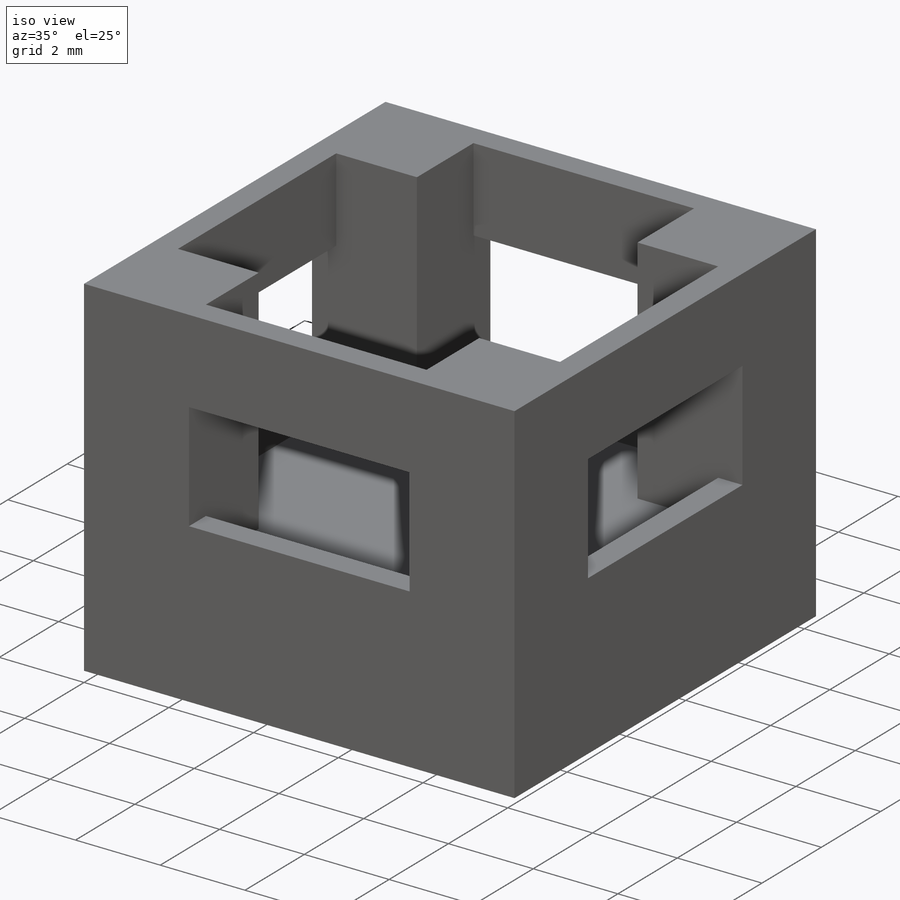
[diagram: iso view]
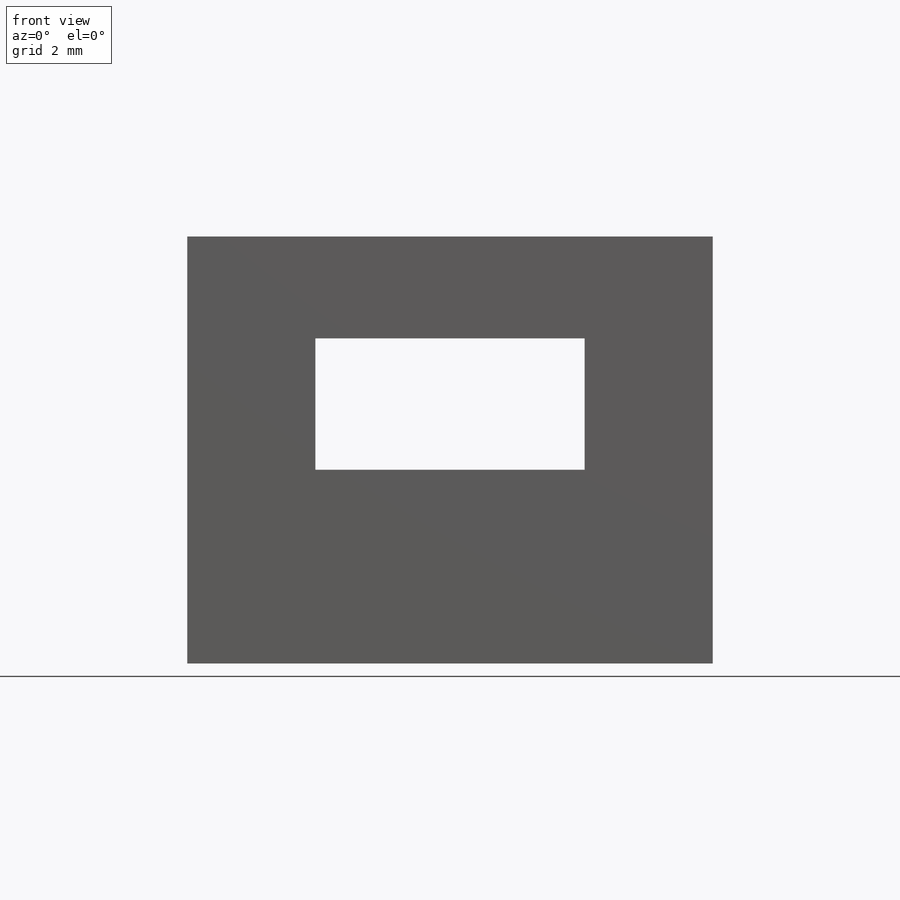
[diagram: front view]
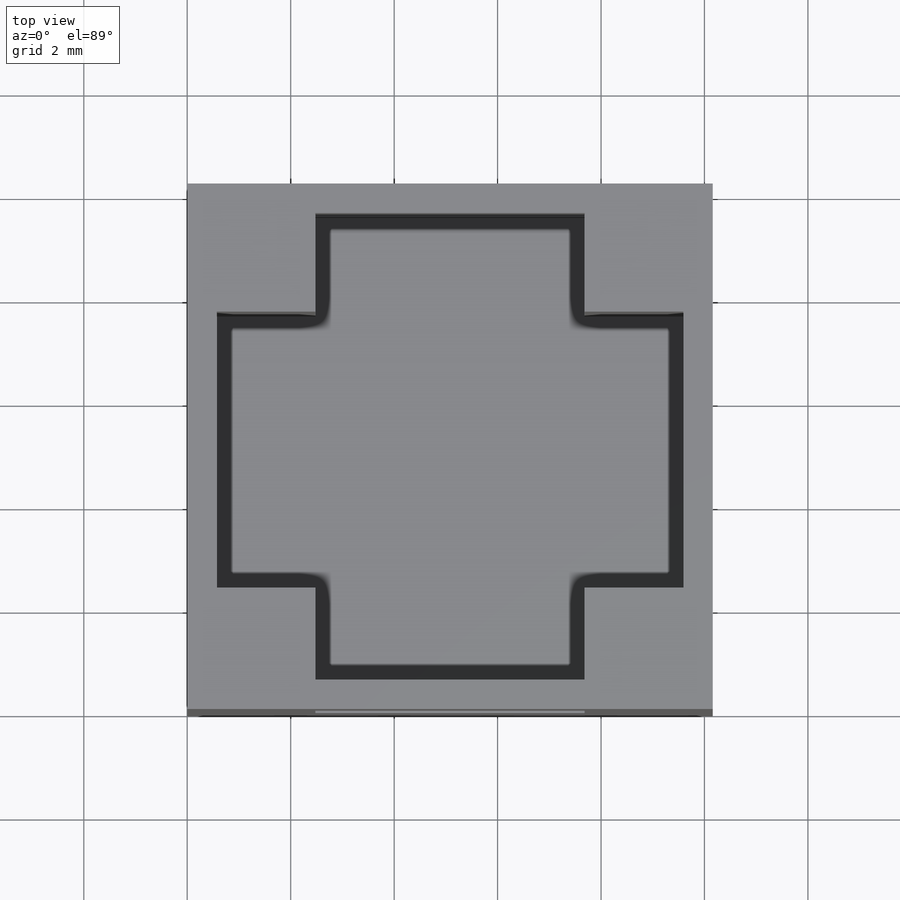
[diagram: top view]
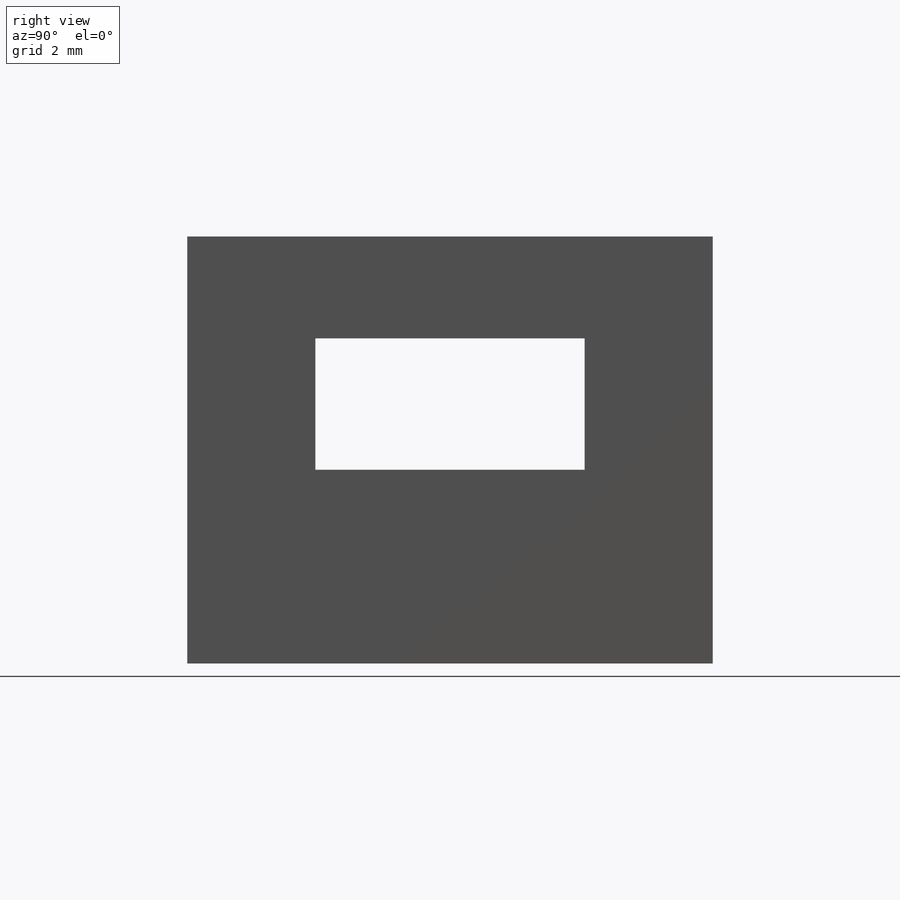
[diagram: right view]
SOLIDWORKS PART (.sldprt)
format: sldprt  version: not decoded by parser v0  size: 242,688 bytes
history: native  units: mm
features: sketch x7, cut_extrude x6, material x1, extrude x1 (+13 scaffold rows collapsed)
feature tree (28):
  scaffold x13  (default folders/planes/origin — collapsed)
  material  "Material <not specified>"
  sketch  "Sketch1"
  extrude  "Boss-Extrude1"  Depth=8.255mm
  sketch  "Sketch2"  dims[D1=3.556mm]
  cut_extrude  "Cut-Extrude3"  Depth=10.16mm
  sketch  "Sketch4"
  cut_extrude  "Cut-Extrude4"  Depth=9.017mm
  sketch  "Sketch5"
  cut_extrude  "Cut-Extrude5"  Depth=9.017mm
  sketch  "Sketch6"
  cut_extrude  "Cut-Extrude6"  Depth=10.16mm
  sketch  "Sketch7"
  cut_extrude  "Cut-Extrude7"  Depth=10.16mm
  sketch  "Sketch8"
  cut_extrude  "Cut-Extrude8"  Depth=10.16mm
decode coverage: 8 of 14 modeling features carry decoded parameters
note: suppression state not decoded; provenance and decode notes live in map.json
